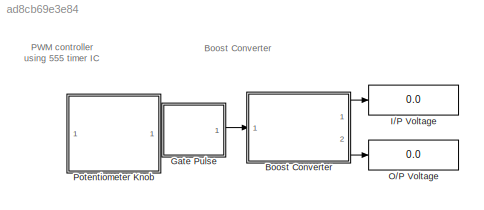
MODEL slx_ad8cb69e3e84
KIND model
CONFIG AbsTol = auto
CONFIG FixedStep = auto
CONFIG MaxStep = auto
CONFIG MinStep = auto
CONFIG RelTol = 1e-3
CONFIG SampleTimeConstraint = Unconstrained
CONFIG Solver = ode45
CONFIG SolverMode = Auto
CONFIG SolverName = ode45
CONFIG StartTime = 0.0
CONFIG StopTime = inf
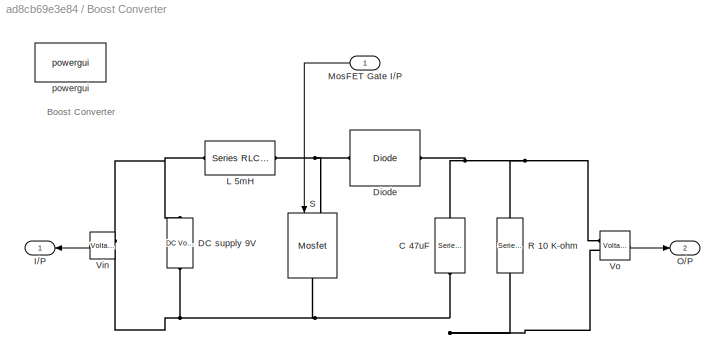
BLOCK [SubSystem] Boost Converter
  Ports = [1, 2]
  RequestExecContextInheritance = off
BLOCK [Reference] Boost Converter/C 47uF  REF=powerlib/Elements/Series RLC Branch
  BranchType = C
  Capacitance = 47e-6
  Inductance = 10e-6
  InitialCurrent = 0
  InitialVoltage = 0
  LConnTagsString = __new0
  Measurements = None
  Ports = [0, 0, 0, 0, 0, 1, 1]
  RConnTagsString = __new0
  Resistance = 1
  SetiL0 = off
  Setx0 = off
  SourceBlock = powerlib/Elements/Series RLC Branch
  SourceType = Series RLC Branch
BLOCK [Reference] Boost Converter/DC supply 9V  REF=powerlib/Electrical
Sources/DC Voltage Source
  Amplitude = 9
  Measurements = None
  Ports = [0, 0, 0, 0, 0, 1, 1]
  SourceBlock = powerlib/Electrical\nSources/DC Voltage Source
  SourceType = DC Voltage Source
BLOCK [Reference] Boost Converter/Diode  REF=powerlib/Power
Electronics/Diode
  Cs = 250e-9
  IC = 0
  Lon = 0
  Measurements = off
  Ports = [0, 0, 0, 0, 0, 1, 1]
  Ron = 0.001
  Rs = 500
  SourceBlock = powerlib/Power\nElectronics/Diode
  SourceType = Diode
  UseSnubber = off
  Vf = 0.8
BLOCK [Outport] Boost Converter/I//P
  IconDisplay = Port number
BLOCK [Reference] Boost Converter/L 5mH  REF=powerlib/Elements/Series RLC Branch
  BranchType = L
  Capacitance = 1e-6
  Inductance = 5e-3
  InitialCurrent = 0
  InitialVoltage = 0
  LConnTagsString = __new0
  Measurements = None
  Ports = [0, 0, 0, 0, 0, 1, 1]
  RConnTagsString = __new0
  Resistance = 1
  SetiL0 = off
  Setx0 = off
  SourceBlock = powerlib/Elements/Series RLC Branch
  SourceType = Series RLC Branch
BLOCK [Inport] Boost Converter/MosFET Gate I//P
  IconDisplay = Port number
BLOCK [Outport] Boost Converter/O//P
  IconDisplay = Port number
  Port = 2
BLOCK [Reference] Boost Converter/R 10 K-ohm  REF=powerlib/Elements/Series RLC Branch
  BranchType = R
  Capacitance = 1000e-6
  Inductance = 10e-6
  InitialCurrent = 0
  InitialVoltage = 0
  LConnTagsString = __new0
  Measurements = None
  Ports = [0, 0, 0, 0, 0, 1, 1]
  RConnTagsString = __new0
  Resistance = 10000
  SetiL0 = off
  Setx0 = off
  SourceBlock = powerlib/Elements/Series RLC Branch
  SourceType = Series RLC Branch
BLOCK [Reference] Boost Converter/S  REF=powerlib/Power
Electronics/Mosfet
  Cs = inf
  IC = 0
  Lon = 0
  Measurements = off
  Ports = [1, 0, 0, 0, 0, 1, 1]
  Rd = 0.01
  Ron = 0.1
  Rs = 1e5
  SourceBlock = powerlib/Power\nElectronics/Mosfet
  SourceType = Mosfet
  Vfd = 0
BLOCK [Reference] Boost Converter/Vin  REF=powerlib/Measurements/Voltage Measurement
  OutputType = Complex
  PSBequivalent = 0
  PhasorSimulation = off
  Ports = [0, 1, 0, 0, 0, 2]
  SourceBlock = powerlib/Measurements/Voltage Measurement
  SourceType = Voltage Measurement
  UserDataPersistent = on
BLOCK [Reference] Boost Converter/Vo  REF=powerlib/Measurements/Voltage Measurement
  OutputType = Complex
  PSBequivalent = 0
  PhasorSimulation = off
  Ports = [0, 1, 0, 0, 0, 2]
  SourceBlock = powerlib/Measurements/Voltage Measurement
  SourceType = Voltage Measurement
  UserDataPersistent = on
BLOCK [Reference] Boost Converter/powergui  REF=powerlib/powergui
  DisableRonSwitches = off
  DisableSnubberDevices = off
  DisableVfSwitches = off
  DisplayEquations = off
  DisplayStyle = 1
  EnableUseOfTLC = off
  ErrMax = 1e-4
  Frange = [0:2:500]
  FreqAxis = off
  FunctionMessages = off
  HookPort = off
  Interpol = off
  Iterations = 50
  MaxFrequency = 1000
  Pbase = 100e6
  Ports = []
  Priority = 1
  ResistiveCurrentMeasurement = off
  RestoreLinks = warning
  RmsSteady = 1
  SPID = off
  SampleTime = 10
  ShowGrid = off
  SolverType = Tustin/Backward Euler (TBE)
  SourceBlock = powerlib/powergui
  SourceType = PSB option menu block
  StartTime = 0.0
  SwTol = 0
  Ts = 100
  UnitsV = kV
  UnitsW = MW
  UserDataPersistent = on
  Xlog = on
  Ylog = off
  ZoomFFT = off
  buscounter = 0
  cycles = 1
  display = off
  echomessages = off
  frequency = 60
  frequencyindice = 0
  frequencyindicesteady = 1
  fundamental = 60
  methode = off
  save = off
  structure = 0
  variable = ZData
  x0status = blocks
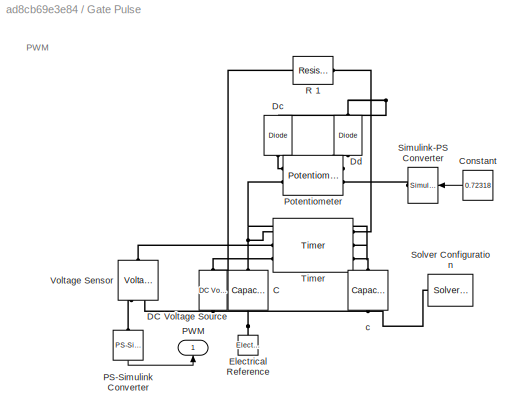
BLOCK [SubSystem] Gate Pulse
  Ports = [0, 1]
  RequestExecContextInheritance = off
BLOCK [Reference] Gate Pulse/C  REF=fl_lib/Electrical/Electrical Elements/Capacitor
  ClassName = capacitor
  ComponentPath = foundation.electrical.elements.capacitor
  ComponentVariantNames = capacitor
  ComponentVariants = foundation.electrical.elements.capacitor
  LogSimulationData = off
  Ports = [0, 0, 0, 0, 0, 1, 1]
  SchemaVersion = 1
  SourceBlock = fl_lib/Electrical/Electrical Elements/Capacitor
  SourceFile = foundation.electrical.elements.capacitor
  SourceType = Capacitor
  c = 330e-12
  c_unit = F
  g = 0
  g_unit = 1/Ohm
  i = 0
  i_priority = High
  i_specify = off
  i_unit = A
  r = 1e-6
  r_unit = Ohm
  v = 0
  v_priority = High
  v_specify = off
  v_unit = V
  vc = 0
  vc_priority = High
  vc_specify = off
  vc_unit = V
BLOCK [Constant] Gate Pulse/Constant
  Value = 0.72318
BLOCK [Reference] Gate Pulse/DC Voltage Source  REF=fl_lib/Electrical/Electrical Sources/DC Voltage Source
  ClassName = dc_voltage
  ComponentPath = foundation.electrical.sources.dc_voltage
  ComponentVariantNames = dc_voltage
  ComponentVariants = foundation.electrical.sources.dc_voltage
  LogSimulationData = off
  Ports = [0, 0, 0, 0, 0, 1, 1]
  SchemaVersion = 1
  SourceBlock = fl_lib/Electrical/Electrical Sources/DC Voltage Source
  SourceFile = foundation.electrical.sources.dc_voltage
  SourceType = DC Voltage Source
  v0 = 20
  v0_unit = V
BLOCK [Reference] Gate Pulse/Dc  REF=fl_lib/Electrical/Electrical Elements/Diode
  ClassName = pwl_diode
  ComponentPath = foundation.electrical.elements.pwl_diode
  ComponentVariantNames = pwl_diode
  ComponentVariants = foundation.electrical.elements.pwl_diode
  Goff = 1e-8
  Goff_unit = 1/Ohm
  LogSimulationData = off
  Ports = [0, 0, 0, 0, 0, 1, 1]
  Ron = 0.3
  Ron_unit = Ohm
  SchemaVersion = 1
  SourceBlock = fl_lib/Electrical/Electrical Elements/Diode
  SourceFile = foundation.electrical.elements.pwl_diode
  SourceType = Diode
  Vf = 0.6
  Vf_unit = V
  i = 0
  i_priority = High
  i_specify = off
  i_unit = A
  v = 0
  v_priority = High
  v_specify = off
  v_unit = V
BLOCK [Reference] Gate Pulse/Dd  REF=fl_lib/Electrical/Electrical Elements/Diode
  ClassName = pwl_diode
  ComponentPath = foundation.electrical.elements.pwl_diode
  ComponentVariantNames = pwl_diode
  ComponentVariants = foundation.electrical.elements.pwl_diode
  Goff = 1e-8
  Goff_unit = 1/Ohm
  LogSimulationData = off
  Ports = [0, 0, 0, 0, 0, 1, 1]
  Ron = 0.3
  Ron_unit = Ohm
  SchemaVersion = 1
  SourceBlock = fl_lib/Electrical/Electrical Elements/Diode
  SourceFile = foundation.electrical.elements.pwl_diode
  SourceType = Diode
  Vf = 0.6
  Vf_unit = V
  i = 0
  i_priority = High
  i_specify = off
  i_unit = A
  v = 0
  v_priority = High
  v_specify = off
  v_unit = V
BLOCK [Reference] Gate Pulse/Electrical Reference  REF=fl_lib/Electrical/Electrical Elements/Electrical Reference
  ClassName = reference
  ComponentPath = foundation.electrical.elements.reference
  ComponentVariantNames = reference
  ComponentVariants = foundation.electrical.elements.reference
  LogSimulationData = off
  Ports = [0, 0, 0, 0, 0, 1]
  SchemaVersion = 1
  SourceBlock = fl_lib/Electrical/Electrical Elements/Electrical Reference
  SourceFile = foundation.electrical.elements.reference
  SourceType = Electrical Reference
BLOCK [Reference] Gate Pulse/PS-Simulink Converter  REF=nesl_utility/PS-Simulink
Converter
  AffineConversion = off
  Frequencies = []
  LeftPortType = input
  PhysicalDomain = network_engine_domain
  Ports = [0, 1, 0, 0, 0, 1]
  PseudoPeriodic = off
  RightPortType = output
  SourceBlock = nesl_utility/PS-Simulink\nConverter
  SourceType = PS-Simulink\nConverter
  SubClassName = ps_output
  Unit = 1
BLOCK [Outport] Gate Pulse/PWM
  IconDisplay = Port number
BLOCK [Reference] Gate Pulse/Potentiometer  REF=elec_lib/Passive Devices/Potentiometer
  A = 1
  A_unit = Ohm
  ClassName = potentiometer
  ComponentPath = elec.passive.potentiometer
  ComponentVariantNames = potentiometer
  ComponentVariants = elec.passive.potentiometer
  Gradient = 1
  Gradient_unit = 1
  LogSimulationData = off
  Ports = [0, 0, 0, 0, 0, 2, 2]
  R0 = 47
  R0_unit = kOhm
  Rcenter = 200
  Rcenter_unit = Ohm
  Rw = 1
  Rw_unit = Ohm
  SchemaVersion = 1
  SourceBlock = elec_lib/Passive Devices/Potentiometer
  SourceFile = elec.passive.potentiometer
  SourceType = Potentiometer
  Taper = 1
  Taper_unit = 1
  lambda = 1
  lambda_unit = 1
  xmax = 1
  xmaxL = 1
  xmaxL_unit = 1
  xmax_unit = 1
  xmin = 0
  xminL = 0
  xminL_unit = 1
  xmin_unit = 1
BLOCK [Reference] Gate Pulse/R 1  REF=fl_lib/Electrical/Electrical Elements/Resistor
  ClassName = resistor
  ComponentPath = foundation.electrical.elements.resistor
  ComponentVariantNames = resistor
  ComponentVariants = foundation.electrical.elements.resistor
  LogSimulationData = off
  Ports = [0, 0, 0, 0, 0, 1, 1]
  R = 10
  R_unit = kOhm
  SchemaVersion = 1
  SourceBlock = fl_lib/Electrical/Electrical Elements/Resistor
  SourceFile = foundation.electrical.elements.resistor
  SourceType = Resistor
  i = 0
  i_priority = High
  i_specify = off
  i_unit = A
  v = 0
  v_priority = High
  v_specify = off
  v_unit = V
BLOCK [Reference] Gate Pulse/Simulink-PS Converter  REF=nesl_utility/Simulink-PS
Converter
  AffineConversion = off
  Frequencies = []
  InputFilterTimeConstant = 0.001
  InputFiltering = off
  LeftPortType = input
  NoiseDistribution = none
  NoiseParameters = []
  PhysicalDomain = network_engine_domain
  Ports = [1, 0, 0, 0, 0, 0, 1]
  PseudoPeriodic = off
  RightPortType = output
  SimscapeFilterOrder = 1
  SourceBlock = nesl_utility/Simulink-PS\nConverter
  SourceType = Simulink-PS\nConverter
  SubClassName = ps_input
  UdotUserProvided = 1
  Unit = 1
BLOCK [Reference] Gate Pulse/Solver Configuration  REF=nesl_utility/Solver
Configuration
  AbsTol = 1e-06
  Accelerate = off
  AutomaticFiltering = on
  DelaysMemoryBudget = 1024
  DoDC = off
  DoFixedCost = off
  EnableSwitchedLinearOptims = on
  FilteringTimeConstant = 0.001
  FrequencyDomain = off
  Harmonics = []
  LeftPortType = input
  LinearAlgebra = Sparse
  LocalSolverChoice = NE_BACKWARD_EULER_ADVANCER
  LocalSolverSampleTime = 0.001
  MaxModeIter = 2
  MaxNonlinIter = 3
  MinStep = 1e-09
  NumHomotopyIterations = 100
  PhysicalDomain = network_engine_domain
  Ports = [0, 0, 0, 0, 0, 0, 1]
  Profile = off
  RelTol = 0.001
  ResidualTolerance = 1e-09
  RevertToSquareIcSolve = off
  RightPortType = generic
  SimulateNoise = off
  SourceBlock = nesl_utility/Solver\nConfiguration
  SourceType = Solver\nConfiguration
  SubClassName = solver
  ToWorkspace = off
  Tones = []
  UseCCode = off
  UseLocalSampling = off
  UseLocalSolver = off
BLOCK [Reference] Gate Pulse/Timer  REF=elec_lib/Integrated Circuits/Timer
  ClassName = timer
  ComponentPath = elec.integrated_circuits.timer
  ComponentVariantNames = timer
  ComponentVariants = elec.integrated_circuits.timer
  Delay = 1e-7
  Delay_unit = s
  LogSimulationData = off
  Ports = [0, 0, 0, 0, 0, 3, 3]
  R_DIV = 5
  R_DIV_unit = kOhm
  R_OUT = 8
  R_OUT_unit = Ohm
  R_closed = 12
  R_closed_unit = Ohm
  R_open = 5e+8
  R_open_unit = Ohm
  SchemaVersion = 1
  SourceBlock = elec_lib/Integrated Circuits/Timer
  SourceFile = elec.integrated_circuits.timer
  SourceType = Timer
  V_CC = 15
  V_CC_unit = V
  V_OH = 14.1
  V_OH_unit = V
  V_OL = 0
  V_OL_unit = V
BLOCK [Reference] Gate Pulse/Voltage Sensor  REF=fl_lib/Electrical/Electrical Sensors/Voltage Sensor
  ClassName = voltage
  ComponentPath = foundation.electrical.sensors.voltage
  ComponentVariantNames = voltage
  ComponentVariants = foundation.electrical.sensors.voltage
  LogSimulationData = off
  Ports = [0, 0, 0, 0, 0, 1, 2]
  SchemaVersion = 1
  SourceBlock = fl_lib/Electrical/Electrical Sensors/Voltage Sensor
  SourceFile = foundation.electrical.sensors.voltage
  SourceType = Voltage Sensor
BLOCK [Reference] Gate Pulse/c  REF=fl_lib/Electrical/Electrical Elements/Capacitor
  ClassName = capacitor
  ComponentPath = foundation.electrical.elements.capacitor
  ComponentVariantNames = capacitor
  ComponentVariants = foundation.electrical.elements.capacitor
  LogSimulationData = off
  Ports = [0, 0, 0, 0, 0, 1, 1]
  SchemaVersion = 1
  SourceBlock = fl_lib/Electrical/Electrical Elements/Capacitor
  SourceFile = foundation.electrical.elements.capacitor
  SourceType = Capacitor
  c = 330e-12
  c_unit = F
  g = 0
  g_unit = 1/Ohm
  i = 0
  i_priority = High
  i_specify = off
  i_unit = A
  r = 1e-6
  r_unit = Ohm
  v = 0
  v_priority = High
  v_specify = off
  v_unit = V
  vc = 0
  vc_priority = High
  vc_specify = off
  vc_unit = V
BLOCK [Display] I//P Voltage
  Decimation = 1
  Ports = [1]
BLOCK [Display] O//P Voltage
  Decimation = 1
  Ports = [1]
BLOCK [SubSystem] Potentiometer Knob
  DialogController = hmiCreateDDGDialog
  IsWebBlock = on
  MaskHideContents = on
  Ports = []
  RequestExecContextInheritance = off
ANNOTATION (root): Boost Converter
ANNOTATION (root): PWM controller using 555 timer IC
ANNOTATION Boost Converter: Boost Converter
ANNOTATION Gate Pulse: PWM
LINE Boost Converter/MosFET Gate I//P:1 -> Boost Converter/S:1
LINE Boost Converter/Vin:1 -> Boost Converter/I//P:1
LINE Boost Converter/Vo:1 -> Boost Converter/O//P:1
LINE Boost Converter:1 -> I//P Voltage:1
LINE Boost Converter:2 -> O//P Voltage:1
LINE Gate Pulse/Constant:1 -> Gate Pulse/Simulink-PS Converter:1
LINE Gate Pulse/PS-Simulink Converter:1 -> Gate Pulse/PWM:1
LINE Gate Pulse:1 -> Boost Converter:1
PNET net1: Boost Converter/C 47uF:LConn1 -- Boost Converter/Diode:RConn1 -- Boost Converter/R 10 K-ohm:LConn1 -- Boost Converter/Vo:LConn1
PNET net2: Boost Converter/C 47uF:RConn1 -- Boost Converter/DC supply 9V:LConn1 -- Boost Converter/R 10 K-ohm:RConn1 -- Boost Converter/S:RConn1 -- Boost Converter/Vin:LConn2 -- Boost Converter/Vo:LConn2
PNET net3: Boost Converter/DC supply 9V:RConn1 -- Boost Converter/L 5mH:LConn1 -- Boost Converter/Vin:LConn1
PNET net4: Boost Converter/Diode:LConn1 -- Boost Converter/L 5mH:RConn1 -- Boost Converter/S:LConn1
PNET net5: Gate Pulse/C:LConn1 -- Gate Pulse/Potentiometer:LConn2 -- Gate Pulse/Timer:LConn1 -- Gate Pulse/Timer:RConn2
PNET net6: Gate Pulse/C:RConn1 -- Gate Pulse/DC Voltage Source:RConn1 -- Gate Pulse/Electrical Reference:LConn1 -- Gate Pulse/Solver Configuration:RConn1 -- Gate Pulse/Voltage Sensor:RConn2 -- Gate Pulse/c:RConn1
PNET net7: Gate Pulse/DC Voltage Source:LConn1 -- Gate Pulse/R 1:LConn1 -- Gate Pulse/Timer:LConn3
PNET net8: Gate Pulse/Dc:LConn1 -- Gate Pulse/Dd:RConn1 -- Gate Pulse/R 1:RConn1 -- Gate Pulse/Timer:RConn1
PLINE Gate Pulse/Dc:RConn1 -- Gate Pulse/Potentiometer:LConn1
PLINE Gate Pulse/Dd:LConn1 -- Gate Pulse/Potentiometer:RConn1
PLINE Gate Pulse/PS-Simulink Converter:LConn1 -- Gate Pulse/Voltage Sensor:RConn1
PLINE Gate Pulse/Potentiometer:RConn2 -- Gate Pulse/Simulink-PS Converter:RConn1
PLINE Gate Pulse/Timer:LConn2 -- Gate Pulse/Voltage Sensor:LConn1
PLINE Gate Pulse/Timer:RConn3 -- Gate Pulse/c:LConn1
note: PNET lines group multi-terminal physical nets as a canonical sorted terminal list (undirected conserving connections); 2-terminal nets keep the pairwise PLINE form
